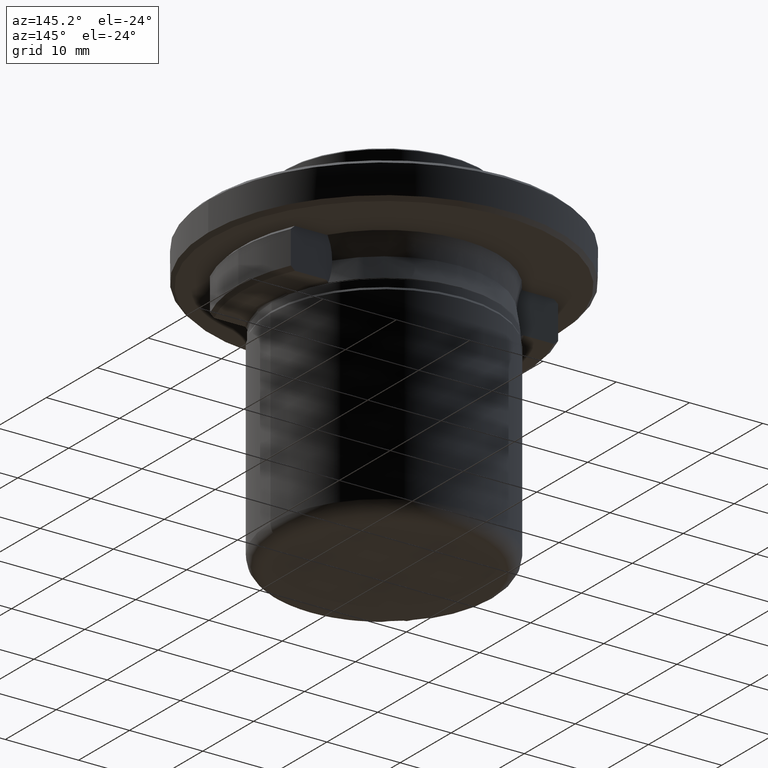
[diagram: clean part render]
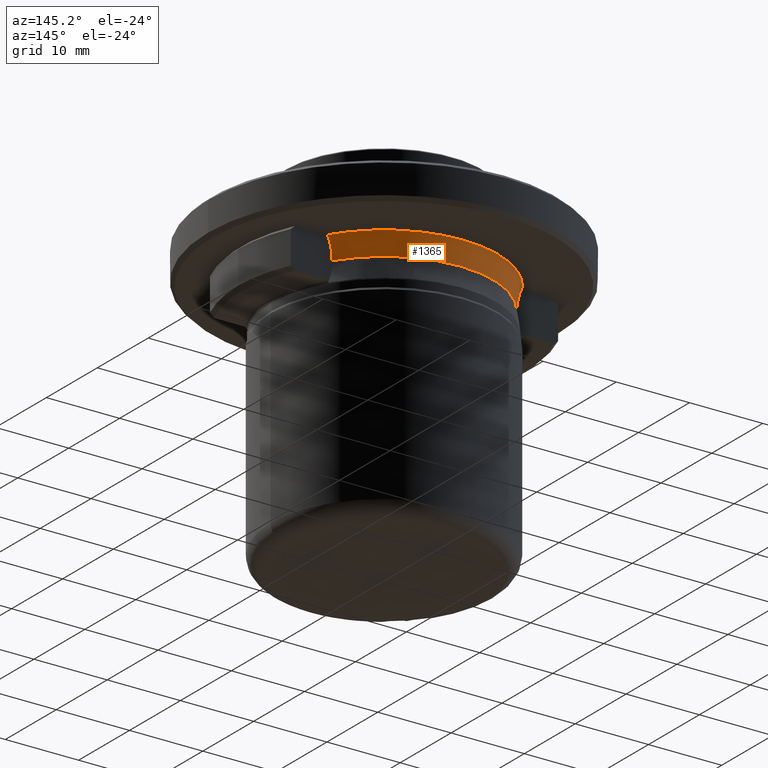
[diagram: same view with one face highlighted and labeled with its STEP entity id]
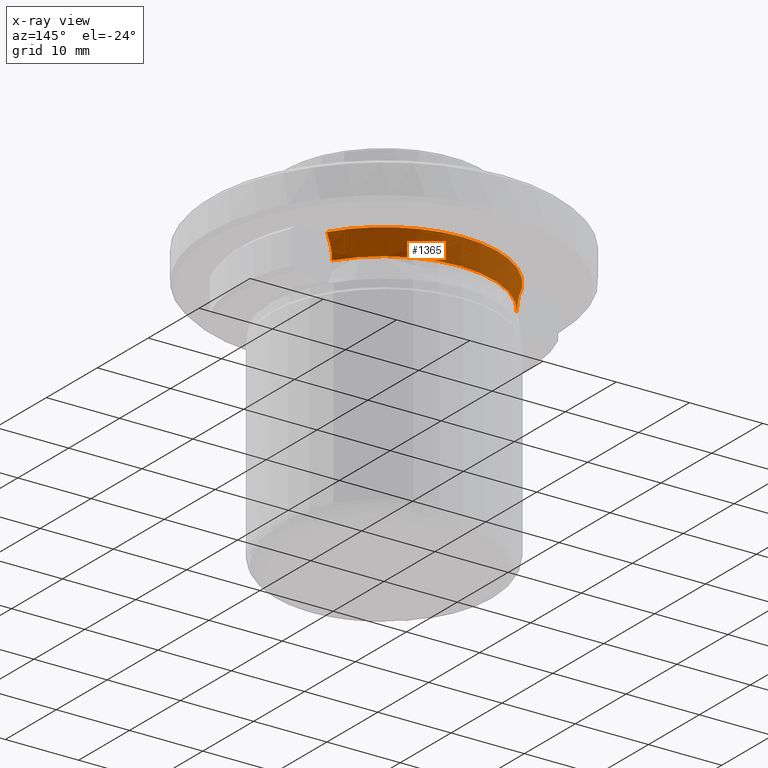
[diagram: x-ray of the same camera — body ghosted, the highlighted face saturated]
A machine part, auxiliary view. The second image highlights one B-rep face of the part: STEP entity #1365.
The next image is the same camera in x-ray: the body ghosted, the highlighted face saturated — about 0% of this face is hidden behind the body in this view.
In plain terms, the highlighted face is a freeform B-spline surface patch.
Its self-contained STEP definition (entity closure, byte-faithful):
#4 = CARTESIAN_POINT ( 'NONE',  ( 0.0000000000000000000, 0.0000000000000000000, 7.773842196000001300 ) ) ;
#38 = EDGE_CURVE ( 'NONE', #1075, #1834, #1393, .T. ) ;
#69 = CARTESIAN_POINT ( 'NONE',  ( 6.380965633999999800, 18.44760542900000300, 5.320036143999999500 ) ) ;
#120 = CARTESIAN_POINT ( 'NONE',  ( -12.68096660112591900, 7.950000000000005500, 5.610062528275282300 ) ) ;
#131 = CARTESIAN_POINT ( 'NONE',  ( 12.66535530415996500, 7.949999999999998400, 5.609358371980545300 ) ) ;
#143 = CARTESIAN_POINT ( 'NONE',  ( 12.60188477964878700, 7.950000000000000200, 4.478485616234513200 ) ) ;
#180 = CIRCLE ( 'NONE', #575, 14.89999999993788300 ) ;
#192 = ORIENTED_EDGE ( 'NONE', *, *, #456, .F. ) ;
#215 = CARTESIAN_POINT ( 'NONE',  ( 6.867173271999999600, 19.85324952300000200, 8.593484004000002200 ) ) ;
#218 = AXIS2_PLACEMENT_3D ( 'NONE', #4, #499, #879 ) ;
#225 = CARTESIAN_POINT ( 'NONE',  ( -12.77965490400000300, 7.405700459999999400, 5.320036143999999500 ) ) ;
#278 = CARTESIAN_POINT ( 'NONE',  ( -12.91525301286886300, 7.950000000000000200, 6.721571217459279000 ) ) ;
#329 =( BOUNDED_SURFACE ( )  B_SPLINE_SURFACE ( 3, 3, ( 
 ( #1896, #1586, #1843, #1284 ),
 ( #831, #69, #1133, #225 ),
 ( #1741, #1903, #1141, #1752 ),
 ( #969, #215, #1885, #1766 ) ),
 .UNSPECIFIED., .F., .F., .F. ) 
 B_SPLINE_SURFACE_WITH_KNOTS ( ( 4, 4 ),
 ( 4, 4 ),
 ( 0.0000000000000000000, 1.000000000000000000 ),
 ( 0.0000000000000000000, 1.000000000000000000 ),
 .UNSPECIFIED. ) 
 GEOMETRIC_REPRESENTATION_ITEM ( )  RATIONAL_B_SPLINE_SURFACE ( (
 ( 1.000000000000000000, 0.6675925262800090900, 0.6675925262800090900, 1.000000000000000000),
 ( 0.9726495440996750800, 0.6493335663306010200, 0.6493335663306010200, 0.9726495440996750800),
 ( 0.9726495440996750800, 0.6493335663306010200, 0.6493335663306010200, 0.9726495440996750800),
 ( 1.000000000000000000, 0.6675925262800090900, 0.6675925262800090900, 1.000000000000000000) ) ) 
 REPRESENTATION_ITEM ( '' )  SURFACE ( )  );
#358 = EDGE_LOOP ( 'NONE', ( #711, #379, #402, #192, #828 ) ) ;
#379 = ORIENTED_EDGE ( 'NONE', *, *, #1778, .T. ) ;
#402 = ORIENTED_EDGE ( 'NONE', *, *, #1274, .F. ) ;
#405 = DIRECTION ( 'NONE',  ( -1.000000000000000000, 0.0000000000000000000, 0.0000000000000000000 ) ) ;
#425 = CARTESIAN_POINT ( 'NONE',  ( -5.204170427930421300E-015, -2.532479434491641300E-011, 4.478485616159577600 ) ) ;
#432 = CARTESIAN_POINT ( 'NONE',  ( -13.33503374469622000, 7.950000000000000200, 7.773842195335446600 ) ) ;
#439 = VERTEX_POINT ( 'NONE', #1978 ) ;
#447 = EDGE_CURVE ( 'NONE', #1719, #1834, #180, .T. ) ;
#456 = EDGE_CURVE ( 'NONE', #1075, #490, #1705, .T. ) ;
#490 = VERTEX_POINT ( 'NONE', #1883 ) ;
#499 = DIRECTION ( 'NONE',  ( -0.0000000000000000000, -0.0000000000000000000, 1.000000000000000000 ) ) ;
#514 = CARTESIAN_POINT ( 'NONE',  ( 12.60188477983408400, 7.949999999999996600, 5.048052196224376500 ) ) ;
#575 = AXIS2_PLACEMENT_3D ( 'NONE', #425, #1491, #701 ) ;
#578 = CARTESIAN_POINT ( 'NONE',  ( -12.60188477957813200, 7.950000000000000200, 4.478485616234512400 ) ) ;
#693 = CARTESIAN_POINT ( 'NONE',  ( 0.0000000000000000000, 0.0000000000000000000, 7.773842196000001300 ) ) ;
#701 = DIRECTION ( 'NONE',  ( -1.000000000000000000, 0.0000000000000000000, 0.0000000000000000000 ) ) ;
#711 = ORIENTED_EDGE ( 'NONE', *, *, #447, .F. ) ;
#771 = AXIS2_PLACEMENT_3D ( 'NONE', #693, #1760, #405 ) ;
#828 = ORIENTED_EDGE ( 'NONE', *, *, #38, .T. ) ;
#831 = CARTESIAN_POINT ( 'NONE',  ( 12.77965490400000300, 7.405700459999999400, 5.320036143999999500 ) ) ;
#879 = DIRECTION ( 'NONE',  ( -1.000000000000000000, -8.881784197001252300E-016, 0.0000000000000000000 ) ) ;
#969 = CARTESIAN_POINT ( 'NONE',  ( 13.75342066000000000, 7.969989367000000200, 8.593484004000002200 ) ) ;
#1000 = CIRCLE ( 'NONE', #218, 15.52500000000000000 ) ;
#1027 = CARTESIAN_POINT ( 'NONE',  ( -12.61783294890721200, 7.950000000000002000, 5.046469899257314000 ) ) ;
#1075 = VERTEX_POINT ( 'NONE', #1848 ) ;
#1133 = CARTESIAN_POINT ( 'NONE',  ( -6.380965633999999800, 18.44760542900000300, 5.320036143999999500 ) ) ;
#1141 = CARTESIAN_POINT ( 'NONE',  ( -6.521743957000000000, 18.85460071800000400, 7.038194949999999400 ) ) ;
#1187 = CARTESIAN_POINT ( 'NONE',  ( -12.72843880618529500, 7.950000000000002000, 5.891492498151086100 ) ) ;
#1198 = CARTESIAN_POINT ( 'NONE',  ( 13.21647750724465100, 7.950000000000000200, 7.515039186343749100 ) ) ;
#1274 = EDGE_CURVE ( 'NONE', #490, #439, #1000, .T. ) ;
#1284 = CARTESIAN_POINT ( 'NONE',  ( -12.93071184499999900, 7.493236662000000200, 3.579984865000000100 ) ) ;
#1301 = CARTESIAN_POINT ( 'NONE',  ( 13.11138746155885400, 7.950000000000069500, 7.251408265856600400 ) ) ;
#1305 = CARTESIAN_POINT ( 'NONE',  ( -12.60188477957813200, 7.950000000000000200, 4.478485616234512400 ) ) ;
#1337 = CARTESIAN_POINT ( 'NONE',  ( -13.09798608338193700, 7.949999999999998400, 7.256377663972313200 ) ) ;
#1365 = ADVANCED_FACE ( 'NONE', ( #1627 ), #329, .F. ) ;
#1393 = B_SPLINE_CURVE_WITH_KNOTS ( 'NONE', 3,
 ( #1785, #1198, #1301, #1974, #1502, #131, #514, #1781 ),
 .UNSPECIFIED., .F., .F.,
 ( 4, 2, 2, 4 ),
 ( 0.0000000000000000000, 0.0008508907946089241000, 0.001701781589217848200, 0.003403563178435692500 ),
 .UNSPECIFIED. ) ;
#1443 = B_SPLINE_CURVE_WITH_KNOTS ( 'NONE', 3,
 ( #578, #1640, #1027, #120, #1187, #278, #1337, #432 ),
 .UNSPECIFIED., .F., .F.,
 ( 4, 2, 2, 4 ),
 ( 0.0000000000000000000, 0.0008505270503976683600, 0.001701054100795336700, 0.003402108201590672100 ),
 .UNSPECIFIED. ) ;
#1491 = DIRECTION ( 'NONE',  ( -0.0000000000000000000, -0.0000000000000000000, -1.000000000000000000 ) ) ;
#1502 = CARTESIAN_POINT ( 'NONE',  ( 12.85156216846595400, 7.950000000000002000, 6.439474253310022400 ) ) ;
#1586 = CARTESIAN_POINT ( 'NONE',  ( 6.456389356999999900, 18.66565817500000100, 3.579984865000000600 ) ) ;
#1627 = FACE_OUTER_BOUND ( 'NONE', #358, .T. ) ;
#1640 = CARTESIAN_POINT ( 'NONE',  ( -12.60188477970642200, 7.950000000000000200, 4.763219922905946600 ) ) ;
#1705 = CIRCLE ( 'NONE', #771, 15.52500000000000000 ) ;
#1719 = VERTEX_POINT ( 'NONE', #1305 ) ;
#1741 = CARTESIAN_POINT ( 'NONE',  ( 13.06160257300000200, 7.569086716999999400, 7.038194950000000300 ) ) ;
#1752 = CARTESIAN_POINT ( 'NONE',  ( -13.06160257300000200, 7.569086716999999400, 7.038194950000000300 ) ) ;
#1760 = DIRECTION ( 'NONE',  ( -0.0000000000000000000, -0.0000000000000000000, 1.000000000000000000 ) ) ;
#1766 = CARTESIAN_POINT ( 'NONE',  ( -13.75342066000000000, 7.969989367000000200, 8.593484004000002200 ) ) ;
#1778 = EDGE_CURVE ( 'NONE', #1719, #439, #1443, .T. ) ;
#1781 = CARTESIAN_POINT ( 'NONE',  ( 12.60188477964878700, 7.950000000000000200, 4.478485616234513200 ) ) ;
#1785 = CARTESIAN_POINT ( 'NONE',  ( 13.33503374396515400, 7.950000002334289400, 7.773842195276910300 ) ) ;
#1834 = VERTEX_POINT ( 'NONE', #143 ) ;
#1843 = CARTESIAN_POINT ( 'NONE',  ( -6.456389356999999900, 18.66565817500000100, 3.579984865000000600 ) ) ;
#1848 = CARTESIAN_POINT ( 'NONE',  ( 13.33503374396515400, 7.950000002334289400, 7.773842195276910300 ) ) ;
#1883 = CARTESIAN_POINT ( 'NONE',  ( 0.0000000000000000000, 15.52500000000000000, 7.773842196000001300 ) ) ;
#1885 = CARTESIAN_POINT ( 'NONE',  ( -6.867173271999999600, 19.85324952300000200, 8.593484004000002200 ) ) ;
#1896 = CARTESIAN_POINT ( 'NONE',  ( 12.93071184499999900, 7.493236662000000200, 3.579984865000000100 ) ) ;
#1903 = CARTESIAN_POINT ( 'NONE',  ( 6.521743957000000000, 18.85460071800000400, 7.038194949999999400 ) ) ;
#1974 = CARTESIAN_POINT ( 'NONE',  ( 12.92903265804288400, 7.950000000000068600, 6.714170475600472100 ) ) ;
#1978 = CARTESIAN_POINT ( 'NONE',  ( -13.33503374469622000, 7.950000000000000200, 7.773842195335446600 ) ) ;